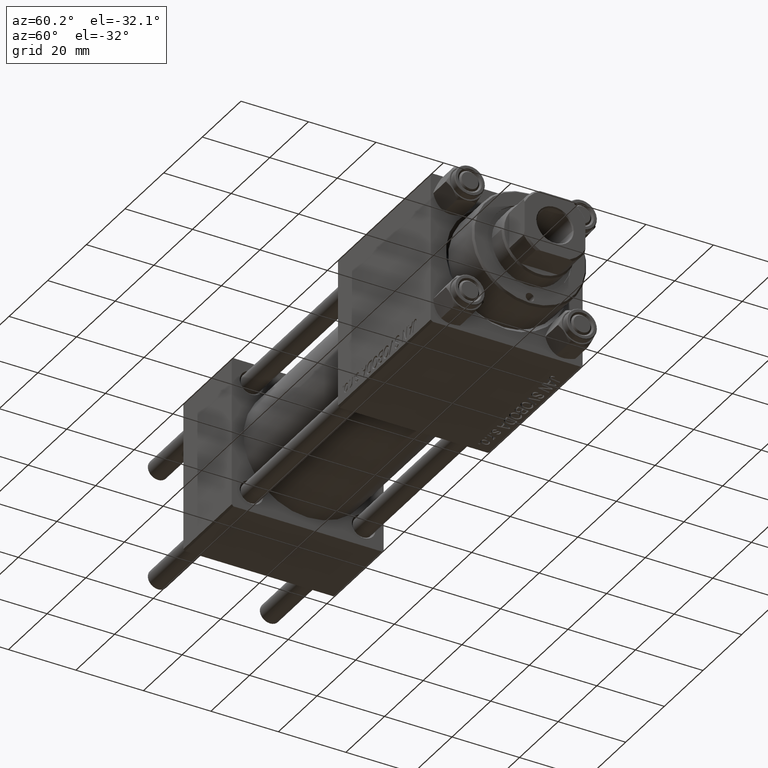
[diagram: clean part render]
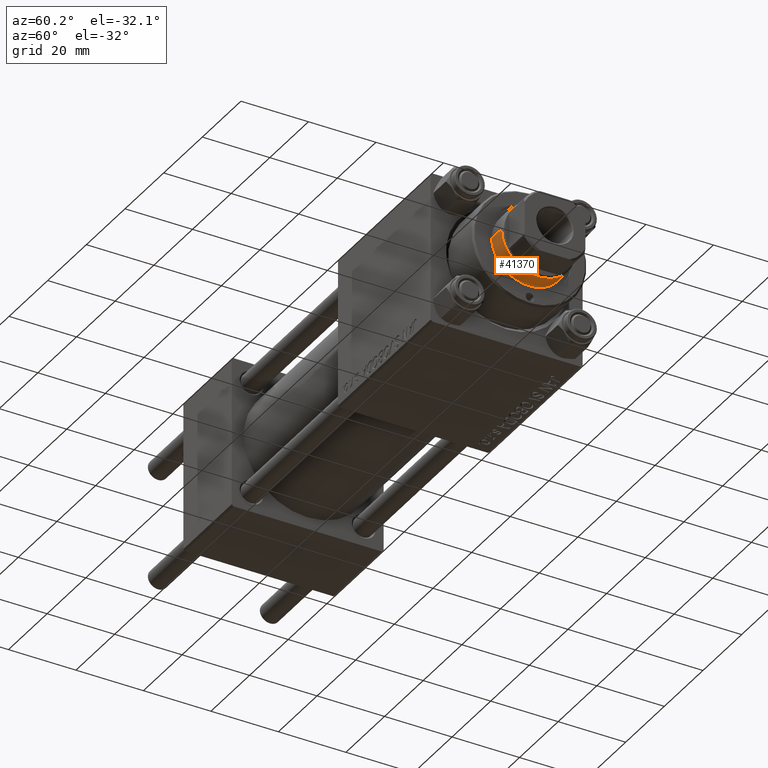
[diagram: same view with one face highlighted and labeled with its STEP entity id]
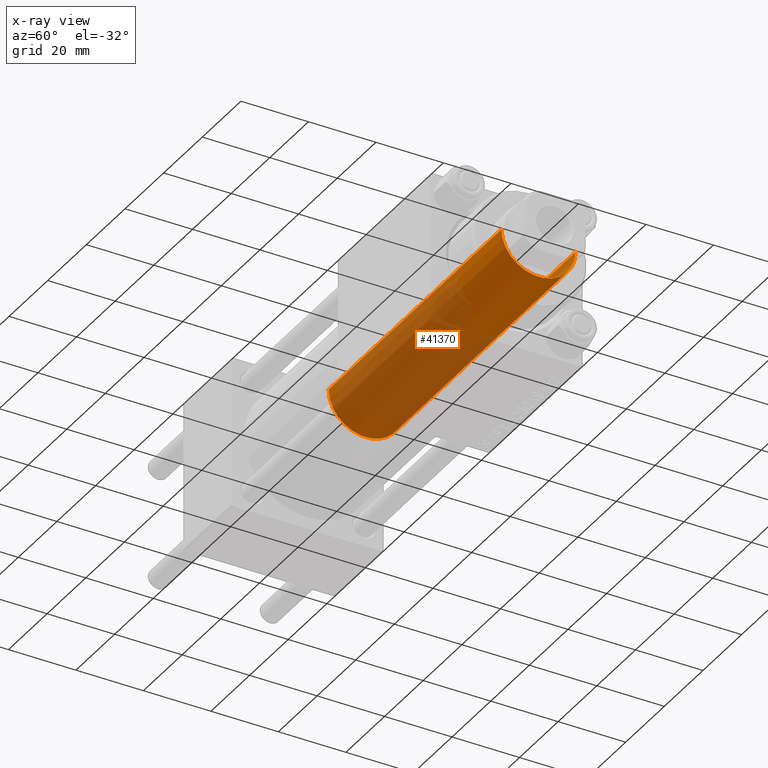
[diagram: x-ray of the same camera — body ghosted, the highlighted face saturated]
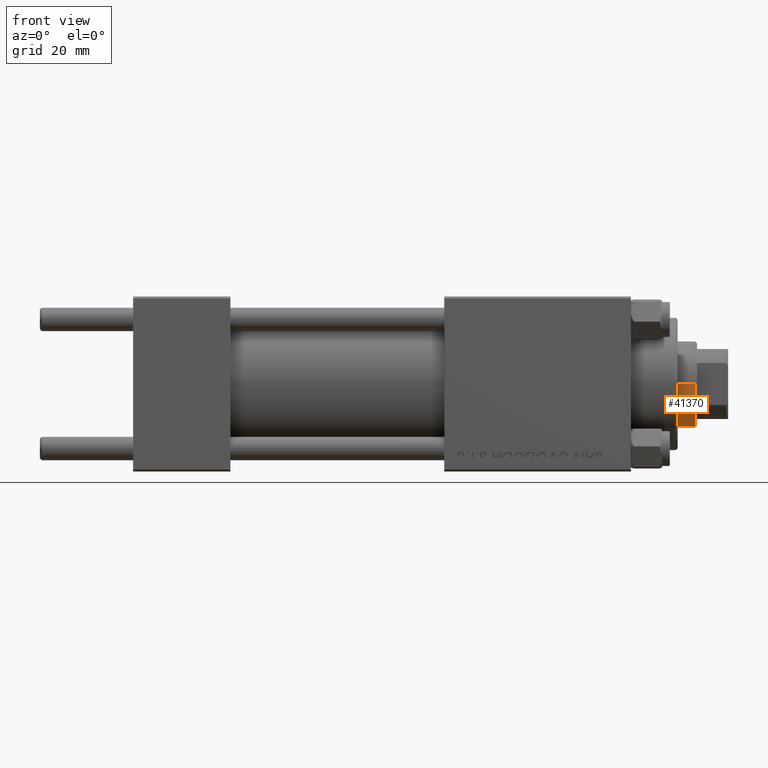
[diagram: same view with one face highlighted and labeled with its STEP entity id]
A machine part, auxiliary view. The second image highlights one B-rep face of the part: STEP entity #41370.
The next image is the same camera in x-ray: the body ghosted, the highlighted face saturated — about 61% of this face is hidden behind the body in this view.
A second angle (front view) of the same face is appended — the face is thin or edge-on in the first view.
In plain terms, the highlighted cylindrical surface (partial cylindrical patch) has radius 11 mm, axis along (-1, 0, 0).
Its self-contained STEP definition (entity closure, byte-faithful):
#248 = CARTESIAN_POINT ( 'NONE',  ( 0.000000000000000000, 0.000000000000000000, 30.00000000000000000 ) ) ;
#333 = DIRECTION ( 'NONE',  ( -1.000000000000000000, 0.000000000000000000, 0.000000000000000000 ) ) ;
#812 = DIRECTION ( 'NONE',  ( 1.000000000000000000, 0.000000000000000000, 0.000000000000000000 ) ) ;
#1392 = EDGE_CURVE ( 'NONE', #32294, #8599, #41305, .T. ) ;
#5308 = EDGE_CURVE ( 'NONE', #15559, #8599, #42250, .T. ) ;
#5735 = AXIS2_PLACEMENT_3D ( 'NONE', #248, #34154, #15672 ) ;
#5849 = AXIS2_PLACEMENT_3D ( 'NONE', #43591, #8916, #333 ) ;
#8354 = ORIENTED_EDGE ( 'NONE', *, *, #35286, .T. ) ;
#8599 = VERTEX_POINT ( 'NONE', #12989 ) ;
#8916 = DIRECTION ( 'NONE',  ( -0.000000000000000000, -0.000000000000000000, -1.000000000000000000 ) ) ;
#10140 = VERTEX_POINT ( 'NONE', #18987 ) ;
#12475 = VECTOR ( 'NONE', #21172, 1000.000000000000000 ) ;
#12989 = CARTESIAN_POINT ( 'NONE',  ( -11.00000000000000000, 0.000000000000000000, 30.00000000000000000 ) ) ;
#13147 = VECTOR ( 'NONE', #18697, 1000.000000000000000 ) ;
#15352 = ORIENTED_EDGE ( 'NONE', *, *, #1392, .T. ) ;
#15559 = VERTEX_POINT ( 'NONE', #20896 ) ;
#15672 = DIRECTION ( 'NONE',  ( 1.000000000000000000, 0.000000000000000000, 0.000000000000000000 ) ) ;
#15764 = CYLINDRICAL_SURFACE ( 'NONE', #5849, 11.00000000000000000 ) ;
#16083 = CARTESIAN_POINT ( 'NONE',  ( 11.00000000000000000, 1.347111479062088207E-15, 30.00000000000000000 ) ) ;
#16243 = DIRECTION ( 'NONE',  ( 0.000000000000000000, 0.000000000000000000, -1.000000000000000000 ) ) ;
#18697 = DIRECTION ( 'NONE',  ( -0.000000000000000000, -0.000000000000000000, -1.000000000000000000 ) ) ;
#18987 = CARTESIAN_POINT ( 'NONE',  ( 11.00000000000000000, 1.347111479062088207E-15, 119.5000000000000711 ) ) ;
#20896 = CARTESIAN_POINT ( 'NONE',  ( -11.00000000000000000, 0.000000000000000000, 119.5000000000000711 ) ) ;
#21172 = DIRECTION ( 'NONE',  ( -0.000000000000000000, -0.000000000000000000, -1.000000000000000000 ) ) ;
#22759 = CARTESIAN_POINT ( 'NONE',  ( -11.00000000000000000, 0.000000000000000000, 120.0000000000000000 ) ) ;
#24986 = CARTESIAN_POINT ( 'NONE',  ( 11.00000000000000000, 1.347111479062088207E-15, 120.0000000000000000 ) ) ;
#32188 = CARTESIAN_POINT ( 'NONE',  ( 0.000000000000000000, 0.000000000000000000, 119.5000000000000711 ) ) ;
#32294 = VERTEX_POINT ( 'NONE', #16083 ) ;
#34154 = DIRECTION ( 'NONE',  ( 0.000000000000000000, 0.000000000000000000, 1.000000000000000000 ) ) ;
#35286 = EDGE_CURVE ( 'NONE', #15559, #10140, #41106, .T. ) ;
#37469 = ORIENTED_EDGE ( 'NONE', *, *, #5308, .F. ) ;
#40916 = EDGE_LOOP ( 'NONE', ( #8354, #43463, #15352, #37469 ) ) ;
#41106 = CIRCLE ( 'NONE', #47556, 11.00000000000000000 ) ;
#41305 = CIRCLE ( 'NONE', #5735, 11.00000000000000000 ) ;
#41370 = ADVANCED_FACE ( 'NONE', ( #42604 ), #15764, .T. ) ;
#42250 = LINE ( 'NONE', #22759, #13147 ) ;
#42604 = FACE_OUTER_BOUND ( 'NONE', #40916, .T. ) ;
#43463 = ORIENTED_EDGE ( 'NONE', *, *, #45715, .T. ) ;
#43591 = CARTESIAN_POINT ( 'NONE',  ( 0.000000000000000000, 0.000000000000000000, 120.0000000000000000 ) ) ;
#45715 = EDGE_CURVE ( 'NONE', #10140, #32294, #49443, .T. ) ;
#47556 = AXIS2_PLACEMENT_3D ( 'NONE', #32188, #16243, #812 ) ;
#49443 = LINE ( 'NONE', #24986, #12475 ) ;